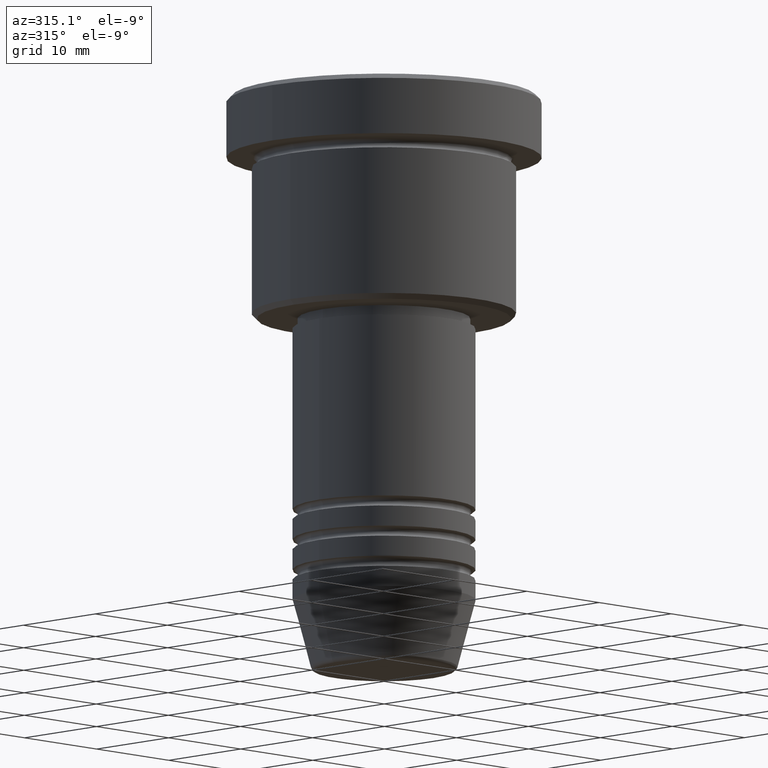
[diagram: clean part render]
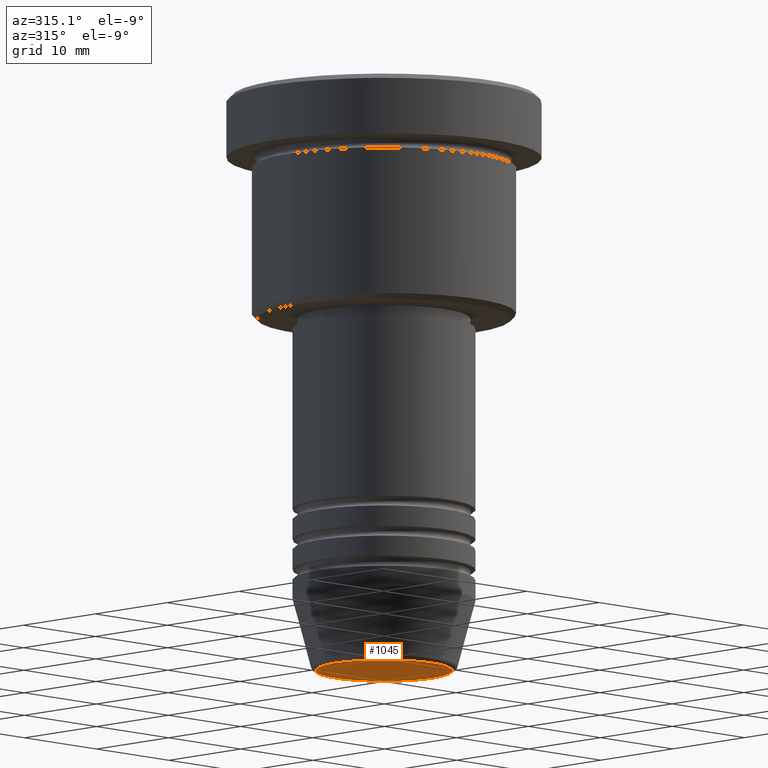
[diagram: same view with one face highlighted and labeled with its STEP entity id]
A machine part, auxiliary view. The second image highlights one B-rep face of the part: STEP entity #1045.
In plain terms, the highlighted planar face has unit normal (0, -0, 1).
Its self-contained STEP definition (entity closure, byte-faithful):
#2 = VERTEX_POINT ( 'NONE', #476 ) ;
#37 = DIRECTION ( 'NONE',  ( 0.000000000000000000, -0.000000000000000000, 1.000000000000000000 ) ) ;
#79 = DIRECTION ( 'NONE',  ( 0.000000000000000000, 0.000000000000000000, -1.000000000000000000 ) ) ;
#134 = EDGE_CURVE ( 'NONE', #357, #2, #688, .T. ) ;
#204 = DIRECTION ( 'NONE',  ( 0.000000000000000000, 0.000000000000000000, -1.000000000000000000 ) ) ;
#307 = FACE_OUTER_BOUND ( 'NONE', #775, .T. ) ;
#357 = VERTEX_POINT ( 'NONE', #901 ) ;
#387 = AXIS2_PLACEMENT_3D ( 'NONE', #1024, #204, #472 ) ;
#472 = DIRECTION ( 'NONE',  ( 1.000000000000000000, 0.000000000000000000, 0.000000000000000000 ) ) ;
#476 = CARTESIAN_POINT ( 'NONE',  ( -6.740692158992656502, 8.550696569392685681E-16, -57.00000000000000000 ) ) ;
#505 = PLANE ( 'NONE',  #1023 ) ;
#529 = CARTESIAN_POINT ( 'NONE',  ( 0.000000000000000000, 0.000000000000000000, -57.00000000000000000 ) ) ;
#639 = CIRCLE ( 'NONE', #870, 6.740692158992656502 ) ;
#688 = CIRCLE ( 'NONE', #387, 6.740692158992656502 ) ;
#753 = ORIENTED_EDGE ( 'NONE', *, *, #860, .T. ) ;
#775 = EDGE_LOOP ( 'NONE', ( #902, #753 ) ) ;
#780 = CARTESIAN_POINT ( 'NONE',  ( 0.000000000000000000, 0.000000000000000000, -57.00000000000000000 ) ) ;
#856 = DIRECTION ( 'NONE',  ( 1.000000000000000000, 0.000000000000000000, 0.000000000000000000 ) ) ;
#860 = EDGE_CURVE ( 'NONE', #2, #357, #639, .T. ) ;
#870 = AXIS2_PLACEMENT_3D ( 'NONE', #529, #79, #891 ) ;
#891 = DIRECTION ( 'NONE',  ( 1.000000000000000000, 0.000000000000000000, 0.000000000000000000 ) ) ;
#901 = CARTESIAN_POINT ( 'NONE',  ( 6.740692158992656502, 0.000000000000000000, -57.00000000000000000 ) ) ;
#902 = ORIENTED_EDGE ( 'NONE', *, *, #134, .T. ) ;
#1023 = AXIS2_PLACEMENT_3D ( 'NONE', #780, #37, #856 ) ;
#1024 = CARTESIAN_POINT ( 'NONE',  ( 0.000000000000000000, 0.000000000000000000, -57.00000000000000000 ) ) ;
#1045 = ADVANCED_FACE ( 'NONE', ( #307 ), #505, .F. ) ;